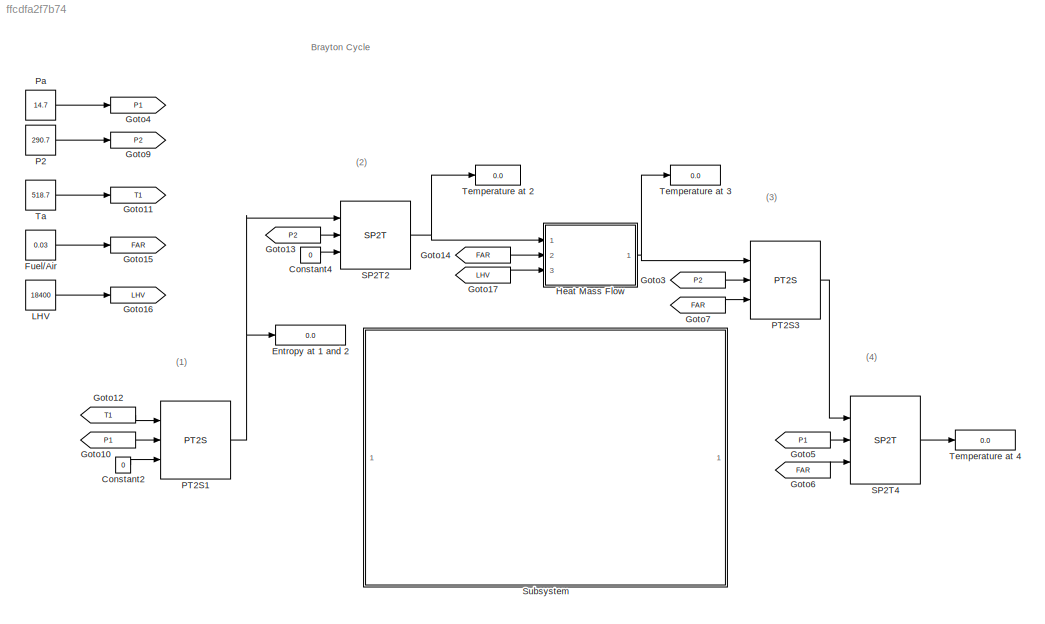
MODEL slx_ffcdfa2f7b74
KIND model
CONFIG AbsTol = auto
CONFIG EnableMultiTasking = on
CONFIG FixedStep = auto
CONFIG MaxStep = auto
CONFIG MinStep = auto
CONFIG RelTol = 1e-3
CONFIG SampleTimeConstraint = Unconstrained
CONFIG Solver = ode45
CONFIG SolverName = ode45
CONFIG StartTime = 0.0
CONFIG StopTime = 10.0
BLOCK [Constant] Constant2
  Value = 0
BLOCK [Constant] Constant4
  Value = 0
BLOCK [Display] Entropy at 1 and 2
  Decimation = 1
  Ports = [1]
BLOCK [Constant] Fuel//Air
  Value = 0.03
BLOCK [From] Goto10
  GotoTag = P1
BLOCK [Goto] Goto11
  GotoTag = T1
BLOCK [From] Goto12
  GotoTag = T1
BLOCK [From] Goto13
  GotoTag = P2
BLOCK [From] Goto14
  GotoTag = FAR
BLOCK [Goto] Goto15
  GotoTag = FAR
BLOCK [Goto] Goto16
  GotoTag = LHV
BLOCK [From] Goto17
  GotoTag = LHV
BLOCK [From] Goto3
  GotoTag = P2
BLOCK [Goto] Goto4
  GotoTag = P1
BLOCK [From] Goto5
  GotoTag = P1
BLOCK [From] Goto6
  GotoTag = FAR
BLOCK [From] Goto7
  GotoTag = FAR
BLOCK [Goto] Goto9
  GotoTag = P2
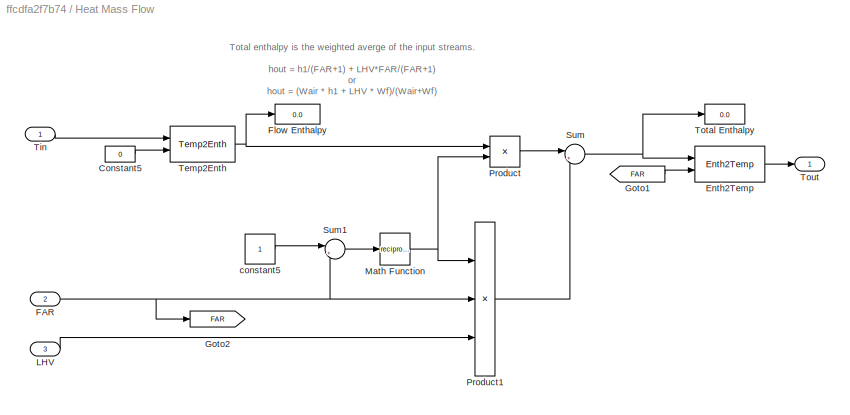
BLOCK [SubSystem] Heat Mass Flow
  Ports = [3, 1]
  RequestExecContextInheritance = off
BLOCK [Constant] Heat Mass Flow/Constant5
  Value = 0
BLOCK [Reference] Heat Mass Flow/Enth2Temp  REF=Lib_Thermo_Enth2Temp_TMATS/Enth2Temp
  Ports = [2, 1]
  SourceBlock = Lib_Thermo_Enth2Temp_TMATS/Enth2Temp
  SourceType = T-MATS: Enth2Temp Library Block
BLOCK [Inport] Heat Mass Flow/FAR
  IconDisplay = Port number
  Port = 2
BLOCK [Display] Heat Mass Flow/Flow Enthalpy
  Decimation = 1
  Ports = [1]
BLOCK [From] Heat Mass Flow/Goto1
  GotoTag = FAR
BLOCK [Goto] Heat Mass Flow/Goto2
  GotoTag = FAR
BLOCK [Inport] Heat Mass Flow/LHV
  IconDisplay = Port number
  Port = 3
BLOCK [Math] Heat Mass Flow/Math Function
  Operator = reciprocal
  Ports = [1, 1]
BLOCK [Product] Heat Mass Flow/Product
  InputSameDT = off
  OutDataTypeStr = Inherit: Inherit via internal rule
  Ports = [2, 1]
  RndMeth = Floor
  SaturateOnIntegerOverflow = off
BLOCK [Product] Heat Mass Flow/Product1
  InputSameDT = off
  Inputs = 3
  OutDataTypeStr = Inherit: Inherit via internal rule
  Ports = [3, 1]
  RndMeth = Floor
  SaturateOnIntegerOverflow = off
BLOCK [Sum] Heat Mass Flow/Sum
  IconShape = round
  InputSameDT = off
  Inputs = |++
  OutDataTypeStr = Inherit: Inherit via internal rule
  Ports = [2, 1]
  SaturateOnIntegerOverflow = off
BLOCK [Sum] Heat Mass Flow/Sum1
  IconShape = round
  InputSameDT = off
  Inputs = |++
  OutDataTypeStr = Inherit: Inherit via internal rule
  Ports = [2, 1]
  SaturateOnIntegerOverflow = off
BLOCK [Reference] Heat Mass Flow/Temp2Enth  REF=Lib_Thermo_Temp2Enth_TMATS/Temp2Enth
  Ports = [2, 1]
  SourceBlock = Lib_Thermo_Temp2Enth_TMATS/Temp2Enth
  SourceType = T-MATS: Temp2Enth Library Block
BLOCK [Inport] Heat Mass Flow/Tin
  IconDisplay = Port number
BLOCK [Display] Heat Mass Flow/Total Enthalpy
  Decimation = 1
  Ports = [1]
BLOCK [Outport] Heat Mass Flow/Tout
  IconDisplay = Port number
BLOCK [Constant] Heat Mass Flow/constant5
BLOCK [Constant] LHV
  Value = 18400
BLOCK [Constant] P2
  Value = 290.7
BLOCK [Reference] PT2S1  REF=Lib_Thermo_PT2S_TMATS/PT2S
  Ports = [3, 1]
  SourceBlock = Lib_Thermo_PT2S_TMATS/PT2S
  SourceType = T-MATS: PT2S Library Block
BLOCK [Reference] PT2S3  REF=Lib_Thermo_PT2S_TMATS/PT2S
  Ports = [3, 1]
  SourceBlock = Lib_Thermo_PT2S_TMATS/PT2S
  SourceType = T-MATS: PT2S Library Block
BLOCK [Constant] Pa
  Value = 14.7
BLOCK [Reference] SP2T2  REF=Lib_Thermo_SP2T_TMATS/SP2T
  Ports = [3, 1]
  SourceBlock = Lib_Thermo_SP2T_TMATS/SP2T
  SourceType = T-MATS: SP2T Library Block
BLOCK [Reference] SP2T4  REF=Lib_Thermo_SP2T_TMATS/SP2T
  Ports = [3, 1]
  SourceBlock = Lib_Thermo_SP2T_TMATS/SP2T
  SourceType = T-MATS: SP2T Library Block
BLOCK [SubSystem] Subsystem
  Ports = []
  RequestExecContextInheritance = off
BLOCK [Constant] Ta
  Value = 518.7
BLOCK [Display] Temperature at 2
  Decimation = 1
  Ports = [1]
BLOCK [Display] Temperature at 3
  Decimation = 1
  Ports = [1]
BLOCK [Display] Temperature at 4
  Decimation = 1
  Ports = [1]
ANNOTATION (root): (1)
ANNOTATION (root): (2)
ANNOTATION (root): (3)
ANNOTATION (root): (4)
ANNOTATION (root): Brayton Cycle
ANNOTATION Heat Mass Flow: Total enthalpy is the weighted averge of the input streams. hout = h1/(FAR+1) + LHV*FAR/(FAR+1) or hout = (Wair * h1 + LHV * Wf)/(Wair+Wf)
LINE Constant2:1 -> PT2S1:3
LINE Constant4:1 -> SP2T2:3
LINE Fuel//Air:1 -> Goto15:1
LINE Goto10:1 -> PT2S1:2
LINE Goto12:1 -> PT2S1:1
LINE Goto13:1 -> SP2T2:2
LINE Goto14:1 -> Heat Mass Flow:2
LINE Goto17:1 -> Heat Mass Flow:3
LINE Goto3:1 -> PT2S3:2
LINE Goto5:1 -> SP2T4:2
LINE Goto6:1 -> SP2T4:3
LINE Goto7:1 -> PT2S3:3
LINE Heat Mass Flow/Constant5:1 -> Heat Mass Flow/Temp2Enth:2
LINE Heat Mass Flow/Enth2Temp:1 -> Heat Mass Flow/Tout:1
NET Heat Mass Flow/FAR:1 -> Heat Mass Flow/Goto2:1, Heat Mass Flow/Product1:2, Heat Mass Flow/Sum1:2
LINE Heat Mass Flow/Goto1:1 -> Heat Mass Flow/Enth2Temp:2
LINE Heat Mass Flow/LHV:1 -> Heat Mass Flow/Product1:3
NET Heat Mass Flow/Math Function:1 -> Heat Mass Flow/Product1:1, Heat Mass Flow/Product:2
LINE Heat Mass Flow/Product1:1 -> Heat Mass Flow/Sum:2
LINE Heat Mass Flow/Product:1 -> Heat Mass Flow/Sum:1
LINE Heat Mass Flow/Sum1:1 -> Heat Mass Flow/Math Function:1
NET Heat Mass Flow/Sum:1 -> Heat Mass Flow/Enth2Temp:1, Heat Mass Flow/Total Enthalpy:1
NET Heat Mass Flow/Temp2Enth:1 -> Heat Mass Flow/Flow Enthalpy:1, Heat Mass Flow/Product:1
LINE Heat Mass Flow/Tin:1 -> Heat Mass Flow/Temp2Enth:1
LINE Heat Mass Flow/constant5:1 -> Heat Mass Flow/Sum1:1
NET Heat Mass Flow:1 -> PT2S3:1, Temperature at 3:1
LINE LHV:1 -> Goto16:1
LINE P2:1 -> Goto9:1
NET PT2S1:1 -> Entropy at 1 and 2:1, SP2T2:1
LINE PT2S3:1 -> SP2T4:1
LINE Pa:1 -> Goto4:1
NET SP2T2:1 -> Heat Mass Flow:1, Temperature at 2:1
LINE SP2T4:1 -> Temperature at 4:1
LINE Ta:1 -> Goto11:1
note: NET lines group one-source signal fan-out (src -> all destinations, sorted); 1:1 wires keep LINE
